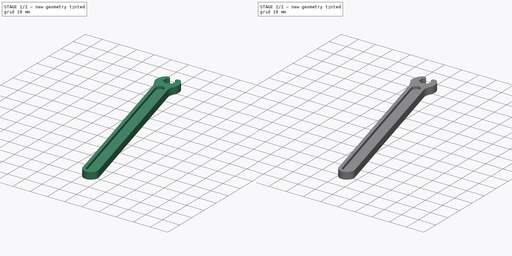
[diagram: build sequence overview — one tinted view per stage of 2, left to right]
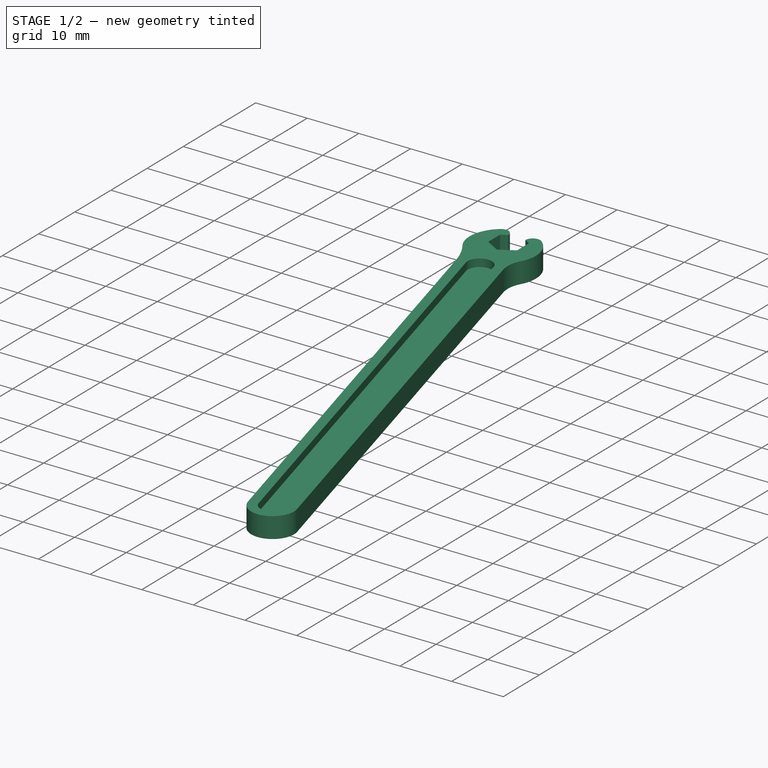
[diagram: stage 1 of 2 — iso view after this stage's code; geometry added in this stage tinted green]
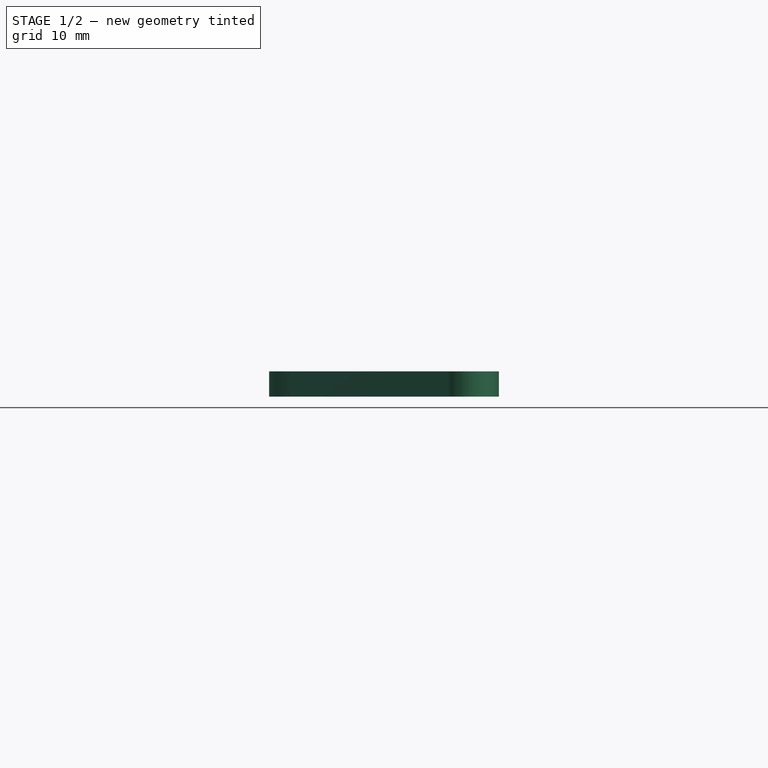
[diagram: stage 1 of 2 — front view after this stage's code; geometry added in this stage tinted green]
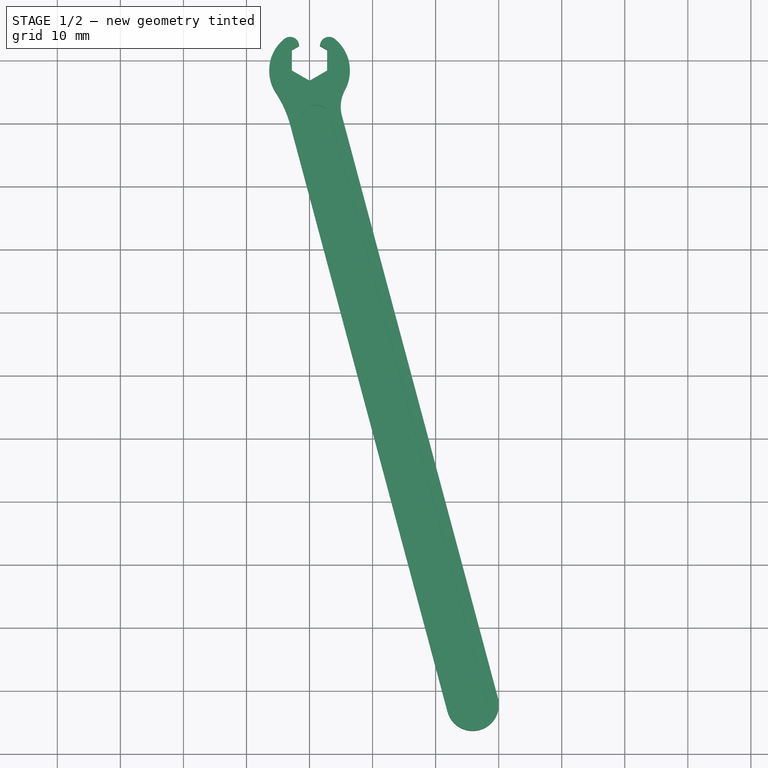
[diagram: stage 1 of 2 — top view after this stage's code; geometry added in this stage tinted green]
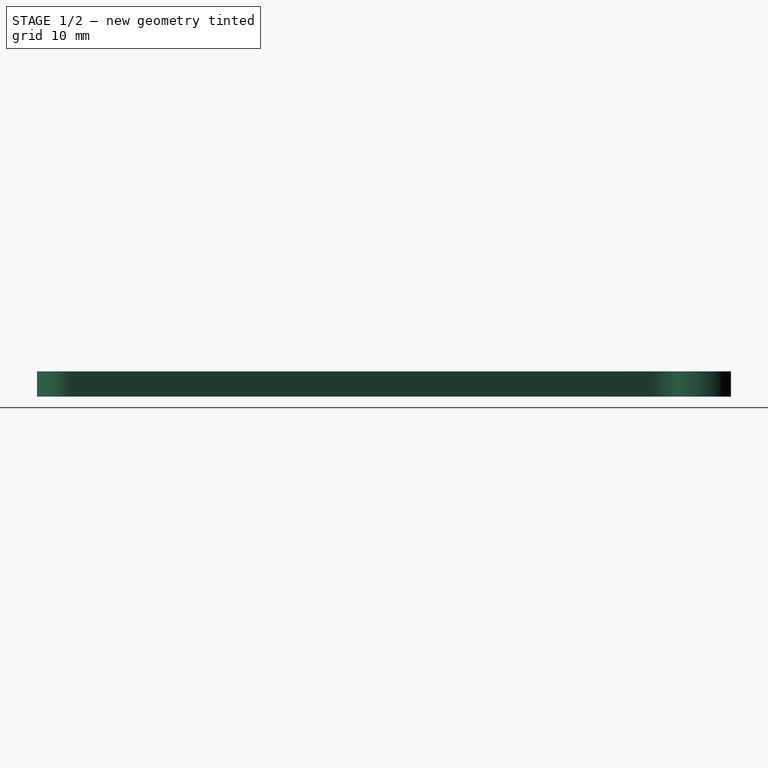
[diagram: stage 1 of 2 — right view after this stage's code; geometry added in this stage tinted green]
FCSTD DOCUMENT  (FreeCAD 0.19R23970 (Git))
Label: 5_5 mm wrench
License: All rights reserved
LicenseURL: http://en.wikipedia.org/wiki/All_rights_reserved
objects: Sketcher::SketchObject×2, PartDesign::Pad×1, PartDesign::Pocket×1, PartDesign::Mirrored×1, PartDesign::Body×1
note: 8 computed .brp shape members not serialized (recipe doc carries the construction recipe); baked Part::Feature solids carry a one-line shape summary decoded from their .brp

FEATURE [Sketcher::SketchObject] Sketch
  FullyConstrained = false
  MapMode = 5
  Support = -> [XY_Plane]
  expr: Constraints[81] = .Constraints.wrench / 5.6 * 1.6
  expr: Constraints[21] = .Constraints.wrench / 5.6 * 4
  expr: Constraints[37] = .Constraints.wrench * 3
  expr: Constraints[15] = .Constraints.wrench / 5.6 * 6.4
  expr: Constraints[20] = -(90 - 15)
  expr: Constraints[29] = .Constraints.wrench
  sketch-geometry (34):
    g0: ArcOfCircle CenterX=-6e-16 CenterY=-1.6 CenterZ=0 NormalX=0 NormalY=0 NormalZ=1 AngleXU=0 Radius=6.4 StartAngle=2.24322 EndAngle=4.71239
    g1: ArcOfCircle CenterX=0 CenterY=-1.6 CenterZ=0 NormalX=0 NormalY=0 NormalZ=1 AngleXU=0 Radius=6.4 StartAngle=4.71239 EndAngle=7.18156
    g2: GeomPoint X=0 Y=-3.23316 Z=0
    g3: LineSegment StartX=0 StartY=-3.23316 StartZ=0 EndX=0 EndY=-8 EndZ=0
    g4: GeomPoint X=0 Y=-5.61658 Z=0
    g5: LineSegment StartX=0 StartY=-5.61658 StartZ=0 EndX=25.8819 EndY=-102.209 EndZ=0
    g6: LineSegment StartX=-3.83064 StartY=-7.32043 StartZ=0 EndX=21.8819 EndY=-103.281 EndZ=0
    g7: LineSegment StartX=4.19319 StartY=-5.26579 StartZ=0 EndX=29.8819 EndY=-101.137 EndZ=0
    g8: LineSegment StartX=21.8819 StartY=-103.281 StartZ=0 EndX=25.8819 EndY=-102.209 EndZ=0
    g9: LineSegment StartX=25.8819 StartY=-102.209 StartZ=0 EndX=29.8819 EndY=-101.137 EndZ=0
    g10: ArcOfCircle CenterX=25.8819 CenterY=-102.209 CenterZ=0 NormalX=0 NormalY=0 NormalZ=1 AngleXU=0 Radius=4.1411 StartAngle=3.40339 EndAngle=6.54498
    g11: ArcOfCircle CenterX=10.5438 CenterY=-7.32968 CenterZ=0 NormalX=0 NormalY=0 NormalZ=1 AngleXU=0 Radius=5.6 StartAngle=2.64382 EndAngle=3.40339
    g12: ArcOfCircle CenterX=-6e-16 CenterY=-1.6 CenterZ=0 NormalX=0 NormalY=0 NormalZ=1 AngleXU=0 Radius=6.4 StartAngle=5.78541 EndAngle=7.18156
    g13: ArcOfCircle CenterX=-6e-16 CenterY=-1.6 CenterZ=0 NormalX=0 NormalY=0 NormalZ=1 AngleXU=0 Radius=6.4 StartAngle=2.24322 EndAngle=3.72904
    g14: ArcOfCircle CenterX=-19.3107 CenterY=-14.4584 CenterZ=0 NormalX=0 NormalY=0 NormalZ=1 AngleXU=0 Radius=16.8 StartAngle=0.261799 EndAngle=0.58745
    g15: LineSegment StartX=29.8819 StartY=-101.137 StartZ=0 EndX=5.13457 EndY=-8.77906 EndZ=0
    g16: LineSegment StartX=21.8819 StartY=-103.281 StartZ=0 EndX=-3.08312 EndY=-10.1102 EndZ=0
    g17: LineSegment StartX=2.8 StartY=1.61658 StartZ=0 EndX=1.3e-15 EndY=3.23316 EndZ=0
    g18: LineSegment StartX=1.4e-15 StartY=3.23316 StartZ=0 EndX=-2.8 EndY=1.61658 EndZ=0
    g19: LineSegment StartX=-2.8 StartY=1.61658 StartZ=0 EndX=-2.8 EndY=-1.61658 EndZ=0
    g20: LineSegment StartX=-2.8 StartY=-1.61658 StartZ=0 EndX=0 EndY=-3.23316 EndZ=0
    g21: LineSegment StartX=0 StartY=-3.23316 StartZ=0 EndX=2.8 EndY=-1.61658 EndZ=0
    g22: LineSegment StartX=2.8 StartY=-1.61658 StartZ=0 EndX=2.8 EndY=1.61658 EndZ=0
    g23: Circle CenterX=0 CenterY=0 CenterZ=0 NormalX=0 NormalY=0 NormalZ=1 AngleXU=0 Radius=3.23316
    g24: LineSegment StartX=-1.65 StartY=2.28053 StartZ=0 EndX=1.65 EndY=2.28053 EndZ=0
    g25: ArcOfCircle CenterX=3.08969 CenterY=2.28053 CenterZ=0 NormalX=0 NormalY=0 NormalZ=1 AngleXU=0 Radius=1.43969 StartAngle=0.898376 EndAngle=3.14159
    g26: LineSegment StartX=1.65 StartY=2.28053 StartZ=0 EndX=1.65 EndY=5.28053 EndZ=0
    g27: ArcOfCircle CenterX=-3.08969 CenterY=2.28053 CenterZ=0 NormalX=0 NormalY=0 NormalZ=1 AngleXU=0 Radius=1.43969 StartAngle=0 EndAngle=2.24322
    g28: LineSegment StartX=-1.65 StartY=2.28053 StartZ=0 EndX=-2.8 EndY=1.61658 EndZ=0
    g29: LineSegment StartX=-2.8 StartY=-1.61658 StartZ=0 EndX=0 EndY=-3.23316 EndZ=0
    g30: LineSegment StartX=2.8 StartY=-1.61658 StartZ=0 EndX=2.8 EndY=1.61658 EndZ=0
    g31: LineSegment StartX=1.65 StartY=2.28053 StartZ=0 EndX=2.8 EndY=1.61658 EndZ=0
    g32: LineSegment StartX=-2.8 StartY=1.61658 StartZ=0 EndX=-2.8 EndY=-1.61658 EndZ=0
    g33: LineSegment StartX=0 StartY=-3.23316 StartZ=0 EndX=2.8 EndY=-1.61658 EndZ=0
  constraints (79):
    c: Horizontal(g12,g13)
    c: Coincident(g1,g0)
    c: PointOnObject(g0,g-2)
    c: PointOnObject(g2,g-2)
    c: Coincident(g3,g2)
    c: Coincident(g3,g0)
    c: Symmetric(g0,g2,g4)
    c: Coincident(g5,g4)
    c: Parallel(g5,g7)
    c: Parallel(g6,g5)
    c: Coincident(g8,g6)
    c: Coincident(g8,g5)
    c: Coincident(g9,g5)
    c: Coincident(g9,g7)
    c: Perpendicular(g6,g8)
    c: Radius(g1) = 6.4
    c: Vertical(g1,g-1)
    c: Coincident(g0,g13) = -1.5708
    c: Coincident(g1,g12) = -1.5708
    c: Equal(g0,g1)
    c: Angle(g5) = -1.309
    c: DistanceX(g8,g8) = 4
    c: Coincident(g10,g5)
    c: Coincident(g10,g6)
    c: Tangent(g10,g7) = 1.5708
    c: Coincident(g12,g0)
    c: Tangent(g12,g11) = 1.5708
    c: Coincident(g13,g12)
    c: Tangent(g14,g13) = 1.5708
    c: Radius(g11) = 5.6
    c: Coincident(g15,g10)
    c: PointOnObject(g15,g7)
    c: Coincident(g16,g10)
    c: PointOnObject(g16,g6)
    c: Tangent(g11,g15) = 1.5708
    c: Tangent(g14,g16) = -1.5708
    c: Distance(g5) = 100
    c: Radius(g14) = 16.8
    c: Coincident(g17,g18)
    c: Coincident(g18,g19)
    c: Coincident(g19,g20)
    c: Coincident(g20,g21)
    c: Coincident(g21,g22)
    c: Coincident(g22,g17)
    c: Equal(g17, g18-g22) x5
    c: PointOnObject(g17,g23)
    c: PointOnObject(g18,g23)
    c: PointOnObject(g19,g23)
    c: PointOnObject(g20,g23)
    c: PointOnObject(g21,g23)
    c: PointOnObject(g22,g23)
    c: Coincident(g23,g-1)
    c: DistanceX(g19,g21) = 5.6  'wrench'
    c: PointOnObject(g24,g18)
    c: PointOnObject(g24,g17)
    c: Horizontal(g24)
    c: DistanceX(g24,g24) = 3.3
    c: Coincident(g25,g24)
    c: Tangent(g25,g12) = -1.5708
    c: Vertical(g26)
    c: DistanceY(g26,g26) = 3
    c: Tangent(g26,g25) = 1.5708
    c: Coincident(g27,g24)
    c: Tangent(g27,g13) = -1.5708
    c: Equal(g27,g25)
    c: Coincident(g28,g27)
    c: Coincident(g28,g18)
    c: Coincident(g29,g19)
    c: Coincident(g29,g20)
    c: Coincident(g30,g21)
    c: Coincident(g30,g17)
    c: Coincident(g31,g25)
    c: Coincident(g31,g30)
    c: Coincident(g32,g28)
    c: Coincident(g32,g29)
    c: Coincident(g33,g29)
    c: Coincident(g33,g30)
    c: DistanceY(g12,g-1) = 1.6
    c: Coincident(g2,g29)
FEATURE [PartDesign::Pad] Pad
  Direction = (1,1,1)
  Length = 4
  Length2 = 100
  Midplane = true
  Profile = -> Sketch
  Refine = true
  Type = 0
FEATURE [Sketcher::SketchObject] Sketch001
  AttachmentOffset = pos=(0,0,2) rot=(0,0,1;0rad)
  ExternalGeometry = -> [Pad]
  FullyConstrained = true
  MapMode = 5
  Placement = pos=(0,0,2) rot=(0,0,1;0rad)
  Support = -> [XY_Plane]
  expr: .AttachmentOffset.Base.z = Pad.Length / 2
  expr: Constraints[12] = <<Sketch>>.Constraints.wrench / 5.6 * 1.8
  sketch-geometry (7):
    g0: LineSegment StartX=-3.08312 StartY=-10.1102 StartZ=0 EndX=5.13457 EndY=-8.77906 EndZ=0
    g1: LineSegment StartX=-1.29714 StartY=-9.82091 StartZ=0 EndX=23.6206 EndY=-102.815 EndZ=0
    g2: LineSegment StartX=28.1432 StartY=-101.603 StartZ=0 EndX=3.34859 EndY=-9.06837 EndZ=0
    g3: LineSegment StartX=21.8819 StartY=-103.281 StartZ=0 EndX=23.6206 EndY=-102.815 EndZ=0
    g4: LineSegment StartX=28.1432 StartY=-101.603 StartZ=0 EndX=29.8819 EndY=-101.137 EndZ=0
    g5: ArcOfCircle CenterX=25.8819 CenterY=-102.209 CenterZ=0 NormalX=0 NormalY=0 NormalZ=1 AngleXU=0 Radius=2.3411 StartAngle=3.40339 EndAngle=6.54498
    g6: ArcOfCircle CenterX=1.02573 CenterY=-9.44464 CenterZ=0 NormalX=0 NormalY=0 NormalZ=1 AngleXU=0 Radius=2.35315 StartAngle=0.160591 EndAngle=3.30218
  constraints (19):
    c: Coincident(g0,g-3)
    c: Coincident(g0,g-4)
    c: PointOnObject(g1,g0)
    c: PointOnObject(g2,g0)
    c: Parallel(g2,g-4)
    c: Parallel(g1,g-3)
    c: Coincident(g3,g-5)
    c: Coincident(g3,g1)
    c: Coincident(g4,g2)
    c: Coincident(g4,g-5)
    c: Perpendicular(g2,g4)
    c: Perpendicular(g1,g3)
    c: Distance(g4) = 1.8
    c: Coincident(g5,g-5)
    c: Coincident(g5,g1)
    c: Coincident(g5,g2)
    c: PointOnObject(g6,g0)
    c: Coincident(g6,g2)
    c: Coincident(g1,g6)
FEATURE [PartDesign::Pocket] Pocket
  BaseFeature = -> Pad
  Length = 1.5
  Length2 = 100
  Profile = -> Sketch001
  Type = 0
  expr: Length = (Pad.Length - 1mm) / 2
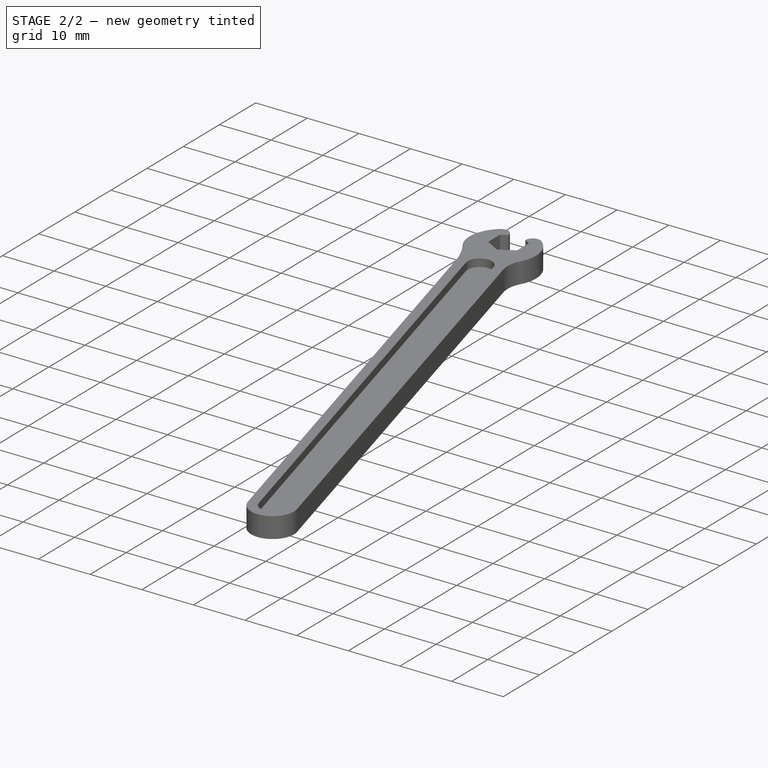
[diagram: stage 2 of 2 — iso view after this stage's code; geometry added in this stage tinted green]
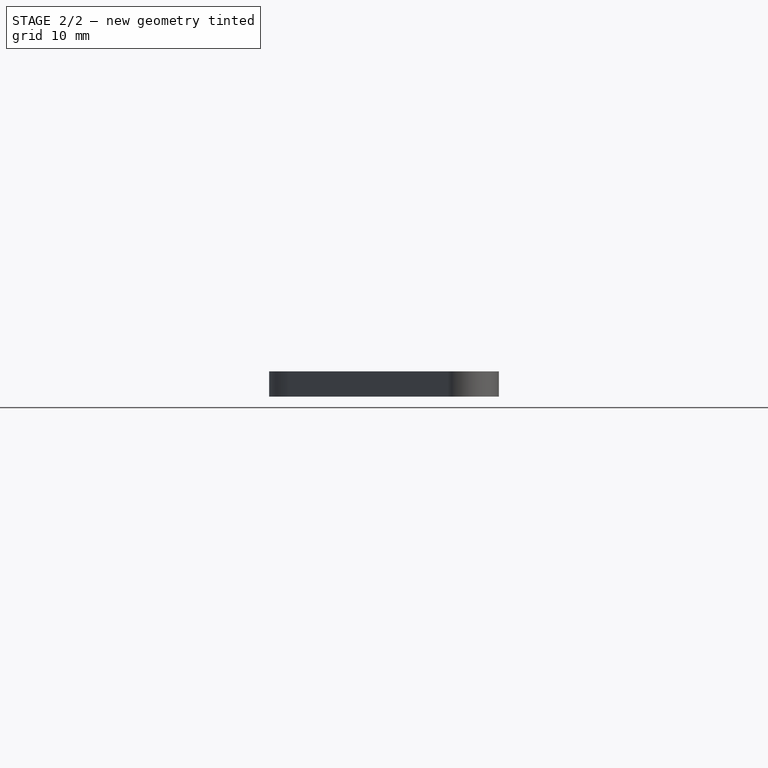
[diagram: stage 2 of 2 — front view after this stage's code; geometry added in this stage tinted green]
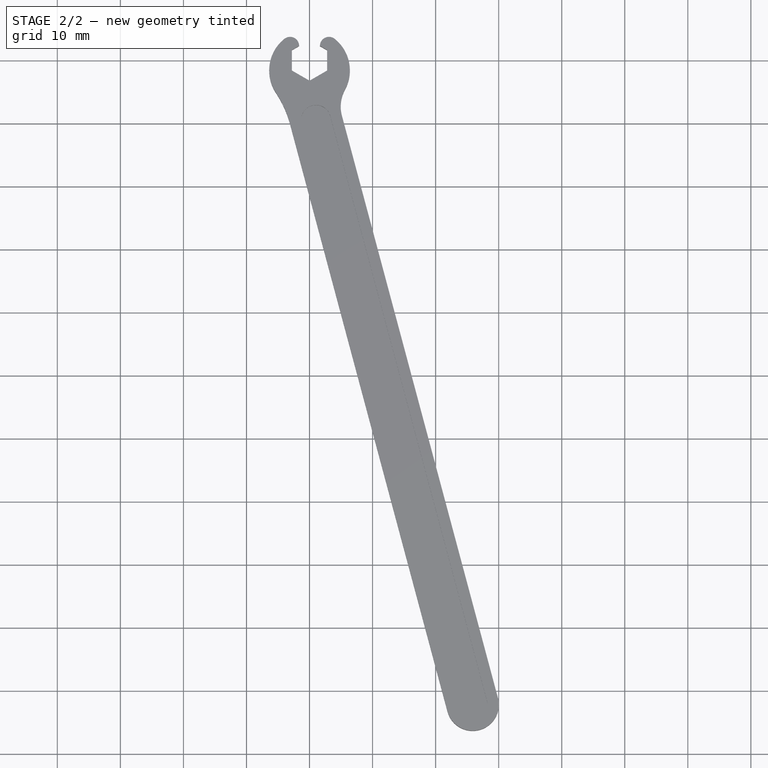
[diagram: stage 2 of 2 — top view after this stage's code; geometry added in this stage tinted green]
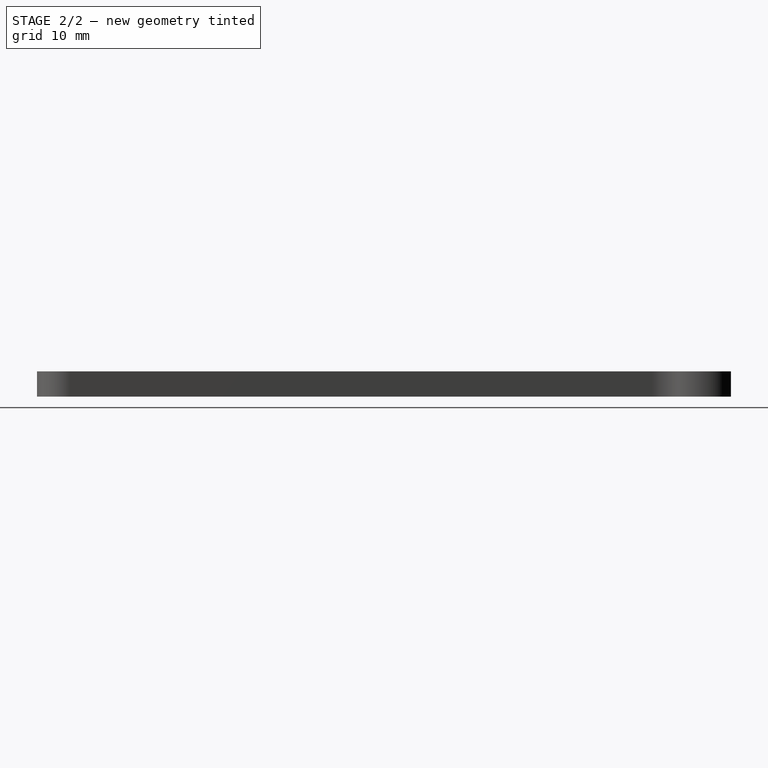
[diagram: stage 2 of 2 — right view after this stage's code; geometry added in this stage tinted green]
FEATURE [PartDesign::Mirrored] Mirrored
  BaseFeature = -> Pocket
  MirrorPlane = -> XY_Plane
  Originals = -> [Pocket]
FEATURE [PartDesign::Body] Body
  Group = -> [Sketch,Pad,Sketch001,Pocket,Mirrored]
  Origin = -> Origin
  Tip = -> Mirrored
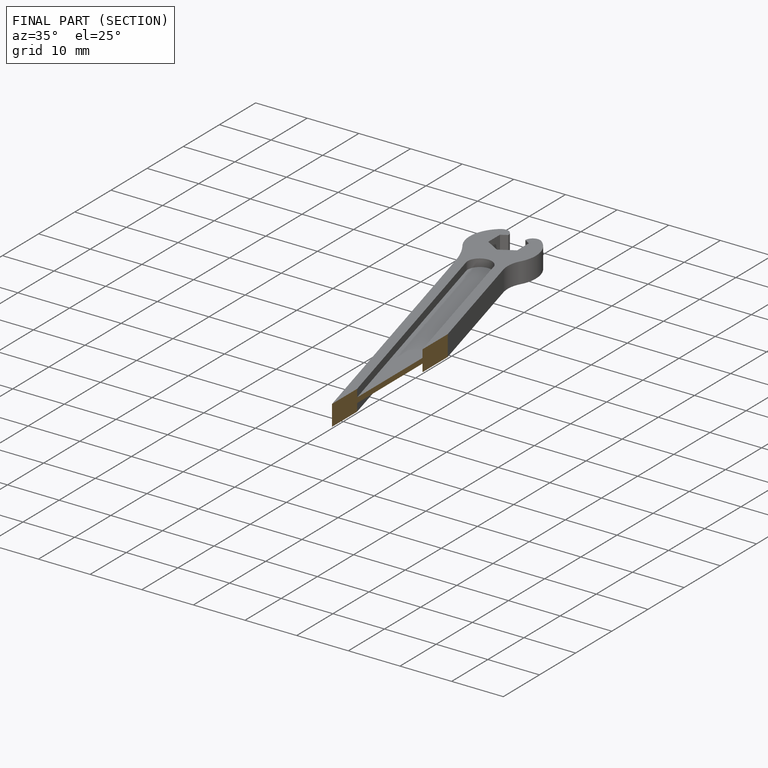
[diagram: finished part — half-section view (interior)]
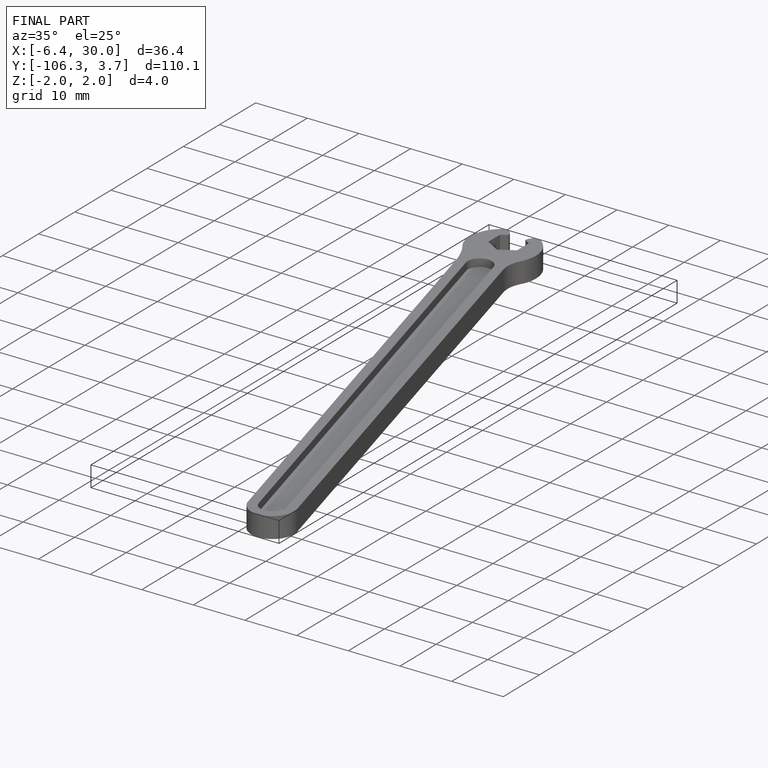
[diagram: finished part — iso view with bounding-box wireframe]
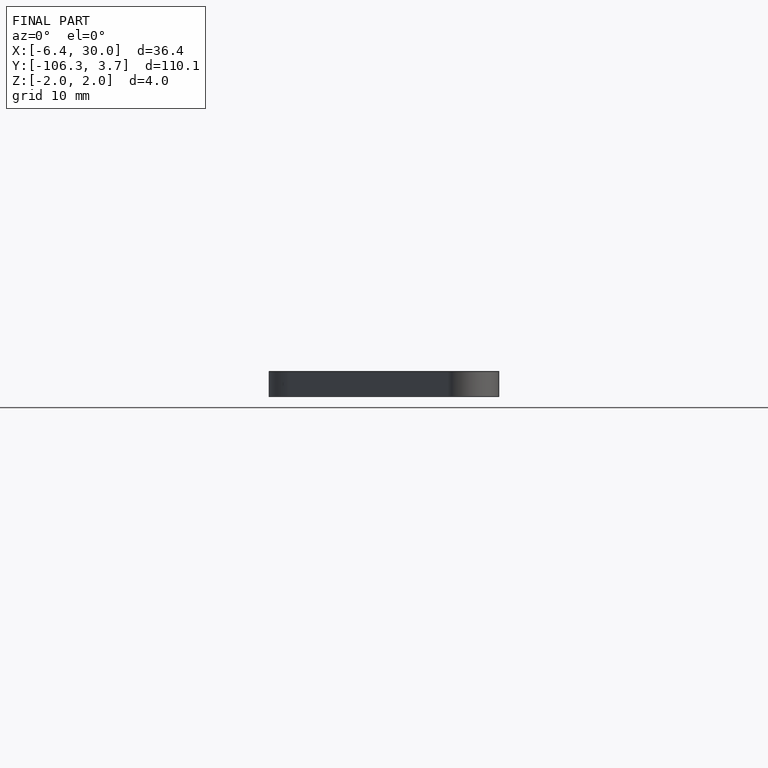
[diagram: finished part — front view with bounding-box wireframe]
